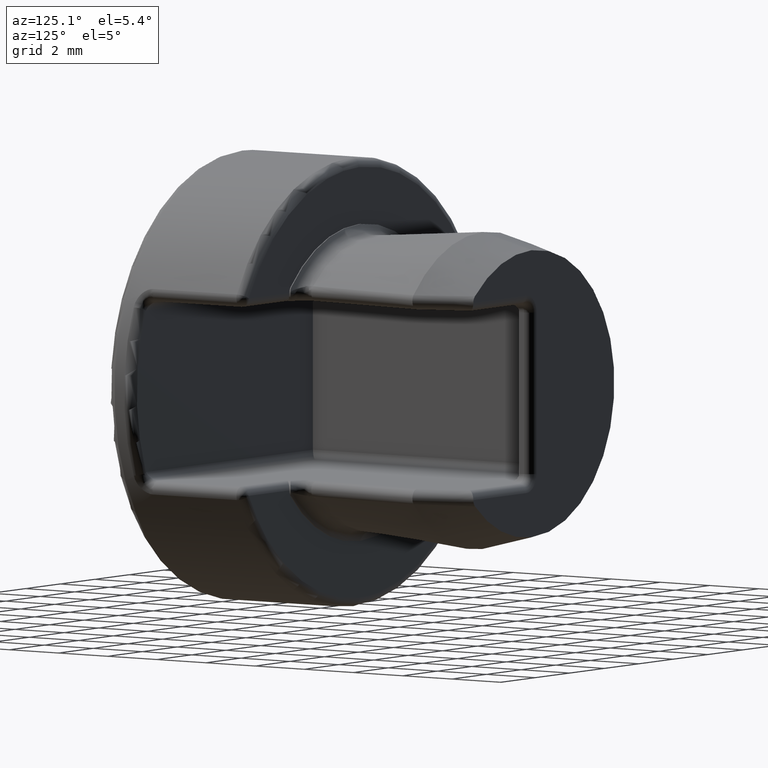
[diagram: clean part render]
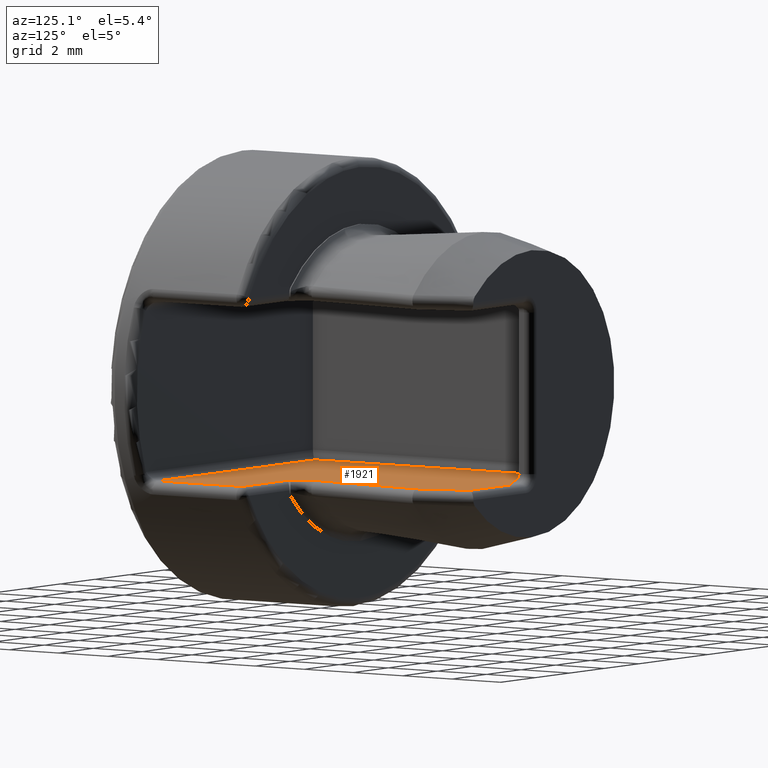
[diagram: same view with one face highlighted and labeled with its STEP entity id]
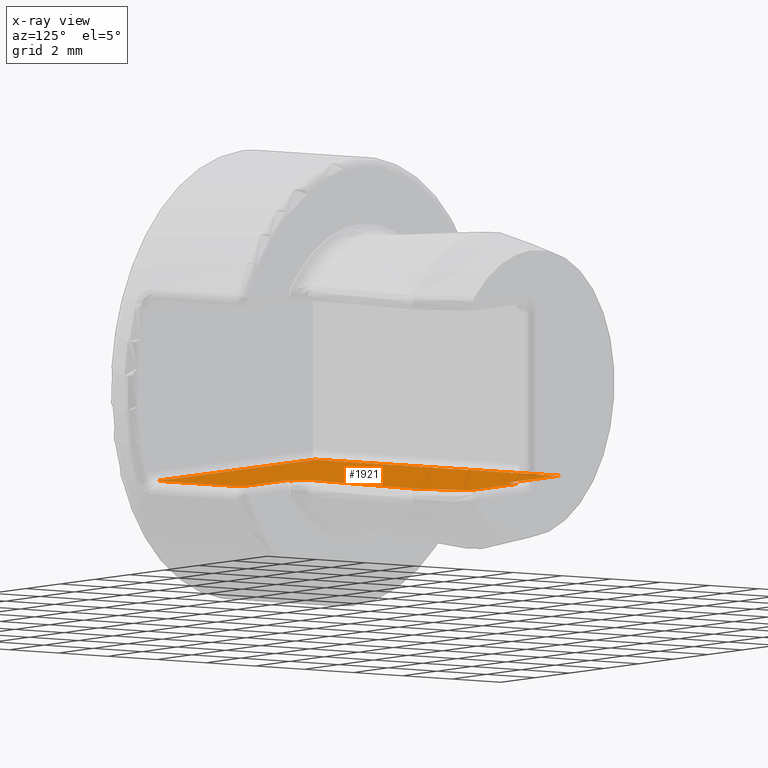
[diagram: x-ray of the same camera — body ghosted, the highlighted face saturated]
A machine part, auxiliary view. The second image highlights one B-rep face of the part: STEP entity #1921.
The next image is the same camera in x-ray: the body ghosted, the highlighted face saturated — about 1% of this face is hidden behind the body in this view.
In plain terms, the highlighted planar face has unit normal (0, -0, -1).
Its self-contained STEP definition (entity closure, byte-faithful):
#15 = DIRECTION ( 'NONE',  ( 1.000000000000000000, 0.0000000000000000000, 0.0000000000000000000 ) ) ;
#16 = VECTOR ( 'NONE', #15, 1000.000000000000000 ) ;
#17 = CARTESIAN_POINT ( 'NONE',  ( -3.000000000000000000, 11.19999999999999900, -3.000000000000000900 ) ) ;
#18 = LINE ( 'NONE', #17, #16 ) ;
#59 = CARTESIAN_POINT ( 'NONE',  ( 0.2999999999999999300, 11.19999999999999900, -3.000000000000000900 ) ) ;
#121 = LINE ( 'NONE', #173, #172 ) ;
#171 = DIRECTION ( 'NONE',  ( 0.0000000000000000000, 1.000000000000000000, -8.260587980841940000E-017 ) ) ;
#172 = VECTOR ( 'NONE', #171, 1000.000000000000000 ) ;
#173 = CARTESIAN_POINT ( 'NONE',  ( 0.2999999999999999300, 11.50000000000000000, -3.000000000000000900 ) ) ;
#496 = CARTESIAN_POINT ( 'NONE',  ( 6.399218702310462500, 1.299999999999999200, -3.000000000000000900 ) ) ;
#570 = DIRECTION ( 'NONE',  ( -1.000000000000000000, -0.0000000000000000000, -0.0000000000000000000 ) ) ;
#571 = VECTOR ( 'NONE', #570, 1000.000000000000000 ) ;
#572 = CARTESIAN_POINT ( 'NONE',  ( -3.000000000000000000, 1.299999999999999200, -3.000000000000000000 ) ) ;
#573 = LINE ( 'NONE', #572, #571 ) ;
#650 = CARTESIAN_POINT ( 'NONE',  ( 3.756327994198589900, 4.699999999999999300, -3.000000000000000400 ) ) ;
#804 = DIRECTION ( 'NONE',  ( 0.0000000000000000000, -1.000000000000000000, 0.0000000000000000000 ) ) ;
#805 = VECTOR ( 'NONE', #804, 1000.000000000000000 ) ;
#806 = CARTESIAN_POINT ( 'NONE',  ( 6.399218702310462500, 5.000000000000000000, -3.000000000000000400 ) ) ;
#807 = LINE ( 'NONE', #806, #805 ) ;
#983 = FACE_OUTER_BOUND ( 'NONE', #1886, .T. ) ;
#1009 = CARTESIAN_POINT ( 'NONE',  ( -3.000000000000000000, 11.50000000000000000, -3.000000000000000900 ) ) ;
#1010 = PLANE ( 'NONE',  #1015 ) ;
#1015 = AXIS2_PLACEMENT_3D ( 'NONE', #1009, #1020, #1019 ) ;
#1019 = DIRECTION ( 'NONE',  ( 0.0000000000000000000, 1.000000000000000000, -8.260587980841940000E-017 ) ) ;
#1020 = DIRECTION ( 'NONE',  ( 0.0000000000000000000, -8.260587980841940000E-017, -1.000000000000000000 ) ) ;
#1156 = DIRECTION ( 'NONE',  ( 1.000000000000000000, 0.0000000000000000000, 0.0000000000000000000 ) ) ;
#1159 = LINE ( 'NONE', #1166, #1165 ) ;
#1165 = VECTOR ( 'NONE', #1156, 1000.000000000000000 ) ;
#1166 = CARTESIAN_POINT ( 'NONE',  ( -3.000000000000000000, 11.70000000000000300, -3.000000000000000900 ) ) ;
#1383 = VERTEX_POINT ( 'NONE', #2311 ) ;
#1412 = EDGE_CURVE ( 'NONE', #1535, #1413, #2566, .T. ) ;
#1413 = VERTEX_POINT ( 'NONE', #2565 ) ;
#1425 = EDGE_CURVE ( 'NONE', #1426, #1427, #2714, .T. ) ;
#1426 = VERTEX_POINT ( 'NONE', #2727 ) ;
#1427 = VERTEX_POINT ( 'NONE', #2723 ) ;
#1535 = VERTEX_POINT ( 'NONE', #3011 ) ;
#1558 = EDGE_CURVE ( 'NONE', #1413, #1758, #3028, .T. ) ;
#1562 = EDGE_CURVE ( 'NONE', #1758, #1563, #3084, .T. ) ;
#1563 = VERTEX_POINT ( 'NONE', #3099 ) ;
#1573 = EDGE_CURVE ( 'NONE', #1427, #1535, #3129, .T. ) ;
#1584 = VERTEX_POINT ( 'NONE', #3157 ) ;
#1585 = VERTEX_POINT ( 'NONE', #3156 ) ;
#1588 = EDGE_CURVE ( 'NONE', #1585, #1584, #3147, .T. ) ;
#1614 = EDGE_CURVE ( 'NONE', #1383, #1426, #1159, .T. ) ;
#1629 = VERTEX_POINT ( 'NONE', #59 ) ;
#1630 = EDGE_CURVE ( 'NONE', #1584, #1629, #18, .T. ) ;
#1665 = EDGE_CURVE ( 'NONE', #1629, #1383, #121, .T. ) ;
#1688 = EDGE_CURVE ( 'NONE', #1689, #1585, #573, .T. ) ;
#1689 = VERTEX_POINT ( 'NONE', #496 ) ;
#1758 = VERTEX_POINT ( 'NONE', #650 ) ;
#1862 = ORIENTED_EDGE ( 'NONE', *, *, #1588, .F. ) ;
#1863 = ORIENTED_EDGE ( 'NONE', *, *, #1688, .F. ) ;
#1864 = ORIENTED_EDGE ( 'NONE', *, *, #1865, .F. ) ;
#1865 = EDGE_CURVE ( 'NONE', #1563, #1689, #807, .T. ) ;
#1866 = ORIENTED_EDGE ( 'NONE', *, *, #1562, .F. ) ;
#1867 = ORIENTED_EDGE ( 'NONE', *, *, #1558, .F. ) ;
#1868 = ORIENTED_EDGE ( 'NONE', *, *, #1412, .F. ) ;
#1869 = ORIENTED_EDGE ( 'NONE', *, *, #1573, .F. ) ;
#1870 = ORIENTED_EDGE ( 'NONE', *, *, #1425, .F. ) ;
#1871 = ORIENTED_EDGE ( 'NONE', *, *, #1614, .F. ) ;
#1886 = EDGE_LOOP ( 'NONE', ( #1922, #1923, #1862, #1863, #1864, #1866, #1867, #1868, #1869, #1870, #1871 ) ) ;
#1921 = ADVANCED_FACE ( 'NONE', ( #983 ), #1010, .F. ) ;
#1922 = ORIENTED_EDGE ( 'NONE', *, *, #1665, .F. ) ;
#1923 = ORIENTED_EDGE ( 'NONE', *, *, #1630, .F. ) ;
#2311 = CARTESIAN_POINT ( 'NONE',  ( 0.2999999999999999300, 11.70000000000000300, -3.000000000000000900 ) ) ;
#2565 = CARTESIAN_POINT ( 'NONE',  ( 3.756327994198585900, 4.844400128459897200, -3.000000000228314300 ) ) ;
#2566 = B_SPLINE_CURVE_WITH_KNOTS ( 'NONE', 3,
 ( #2575, #2574, #2573, #2572, #2589, #2588, #2587, #2586 ),
 .UNSPECIFIED., .F., .F.,
 ( 4, 2, 2, 4 ),
 ( 0.0000000000000000000, 0.2500000000000007800, 0.5000000000000015500, 1.000000000000000000 ),
 .UNSPECIFIED. ) ;
#2572 = CARTESIAN_POINT ( 'NONE',  ( 3.310713682113533900, 5.268392525282203000, -3.000000000073377300 ) ) ;
#2573 = CARTESIAN_POINT ( 'NONE',  ( 3.265167790698582500, 5.418390984484124000, -3.000000000015197200 ) ) ;
#2574 = CARTESIAN_POINT ( 'NONE',  ( 3.256886177682220700, 5.497949409409045500, -3.000000000000001300 ) ) ;
#2575 = CARTESIAN_POINT ( 'NONE',  ( 3.265884164480298500, 5.576568704916317300, -3.000000000000000900 ) ) ;
#2586 = CARTESIAN_POINT ( 'NONE',  ( 3.756327994198585900, 4.844400128459897200, -3.000000000228314300 ) ) ;
#2587 = CARTESIAN_POINT ( 'NONE',  ( 3.617629136854088900, 4.913175355209514100, -3.000000000419687400 ) ) ;
#2588 = CARTESIAN_POINT ( 'NONE',  ( 3.488539171557189600, 5.009959743356905200, -3.000000000274695800 ) ) ;
#2589 = CARTESIAN_POINT ( 'NONE',  ( 3.348238604091486000, 5.198466142800112900, -3.000000000116204800 ) ) ;
#2649 = CARTESIAN_POINT ( 'NONE',  ( 3.155349269299354100, 11.69999999999961400, -3.000000000000000900 ) ) ;
#2710 = CARTESIAN_POINT ( 'NONE',  ( 3.560193459729081000, 10.55225600240550300, -3.000000000000001300 ) ) ;
#2711 = CARTESIAN_POINT ( 'NONE',  ( 3.362341703166785900, 11.12801278323582800, -3.000000000000000900 ) ) ;
#2714 = B_SPLINE_CURVE_WITH_KNOTS ( 'NONE', 3,
 ( #2649, #2711, #2710, #2715 ),
 .UNSPECIFIED., .F., .F.,
 ( 4, 4 ),
 ( 0.0000000000000000000, 1.000000000000000000 ),
 .UNSPECIFIED. ) ;
#2715 = CARTESIAN_POINT ( 'NONE',  ( 3.752355923981805400, 9.975003611688743300, -3.000000000000000900 ) ) ;
#2723 = CARTESIAN_POINT ( 'NONE',  ( 3.752355923981805400, 9.975003611688743300, -3.000000000000000900 ) ) ;
#2727 = CARTESIAN_POINT ( 'NONE',  ( 3.155349269299354100, 11.69999999999961400, -3.000000000000000900 ) ) ;
#3011 = CARTESIAN_POINT ( 'NONE',  ( 3.265884164480298500, 5.576568704916317300, -3.000000000000000900 ) ) ;
#3026 = VECTOR ( 'NONE', #3041, 1000.000000000000000 ) ;
#3027 = CARTESIAN_POINT ( 'NONE',  ( 3.756327994198589900, 11.50000000000000000, -3.000000000000000900 ) ) ;
#3028 = LINE ( 'NONE', #3027, #3026 ) ;
#3041 = DIRECTION ( 'NONE',  ( -0.0000000000000000000, -1.000000000000000000, 8.260587980841940000E-017 ) ) ;
#3084 = LINE ( 'NONE', #3092, #3091 ) ;
#3091 = VECTOR ( 'NONE', #3093, 1000.000000000000000 ) ;
#3092 = CARTESIAN_POINT ( 'NONE',  ( -3.000000000000000000, 4.700000000000000200, -3.000000000000000400 ) ) ;
#3093 = DIRECTION ( 'NONE',  ( 1.000000000000000000, 0.0000000000000000000, 0.0000000000000000000 ) ) ;
#3099 = CARTESIAN_POINT ( 'NONE',  ( 6.399218702310495400, 4.700000000000000200, -3.000000000000000400 ) ) ;
#3116 = CARTESIAN_POINT ( 'NONE',  ( 3.595086089414550700, 8.508332342551581100, -3.000000000000000400 ) ) ;
#3117 = CARTESIAN_POINT ( 'NONE',  ( 3.752355923981805400, 9.975003611688743300, -3.000000000000000900 ) ) ;
#3122 = VECTOR ( 'NONE', #3188, 1000.000000000000000 ) ;
#3123 = CARTESIAN_POINT ( 'NONE',  ( -2.700000000000000200, 11.50000000000000000, -3.000000000000000900 ) ) ;
#3124 = CARTESIAN_POINT ( 'NONE',  ( 3.265884164480298500, 5.576568704916317300, -3.000000000000000900 ) ) ;
#3125 = CARTESIAN_POINT ( 'NONE',  ( 3.433647655046323500, 7.042108722332586400, -3.000000000000000000 ) ) ;
#3129 = B_SPLINE_CURVE_WITH_KNOTS ( 'NONE', 3,
 ( #3117, #3116, #3125, #3124 ),
 .UNSPECIFIED., .F., .F.,
 ( 4, 4 ),
 ( 0.0000000000000000000, 1.000000000000000000 ),
 .UNSPECIFIED. ) ;
#3147 = LINE ( 'NONE', #3123, #3122 ) ;
#3156 = CARTESIAN_POINT ( 'NONE',  ( -2.700000000000000200, 1.299999999999999200, -3.000000000000000000 ) ) ;
#3157 = CARTESIAN_POINT ( 'NONE',  ( -2.700000000000000200, 11.19999999999999900, -3.000000000000000900 ) ) ;
#3188 = DIRECTION ( 'NONE',  ( 0.0000000000000000000, 1.000000000000000000, -8.260587980841940000E-017 ) ) ;